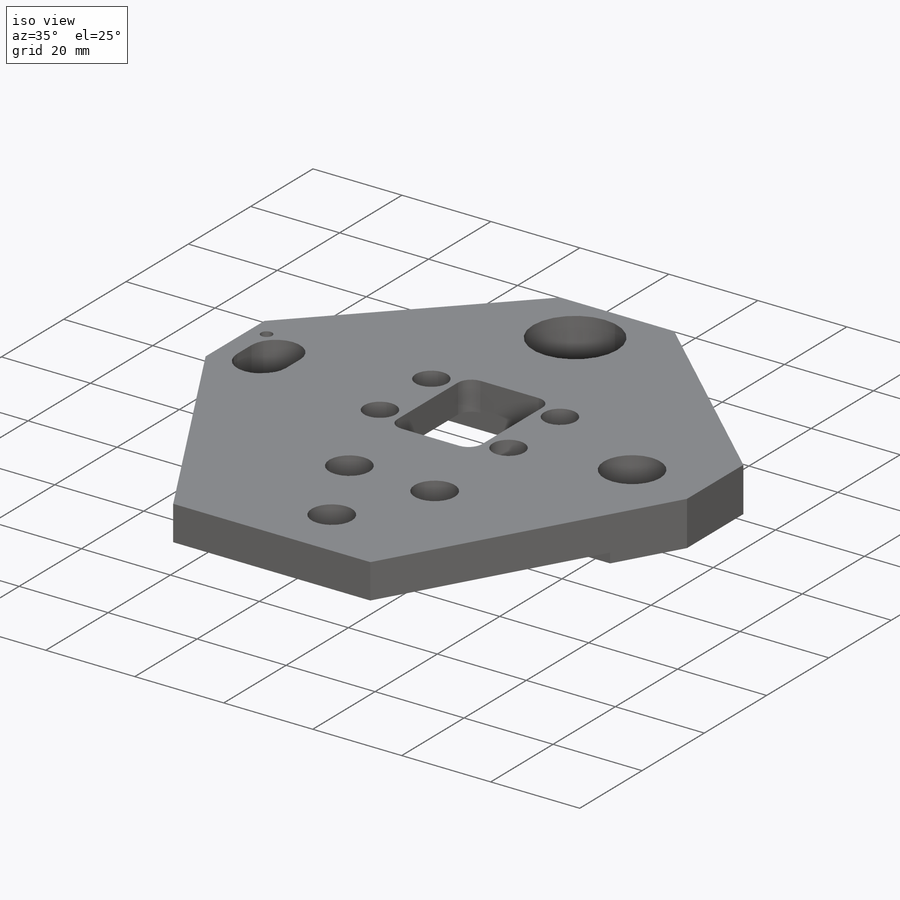
[diagram: iso view]
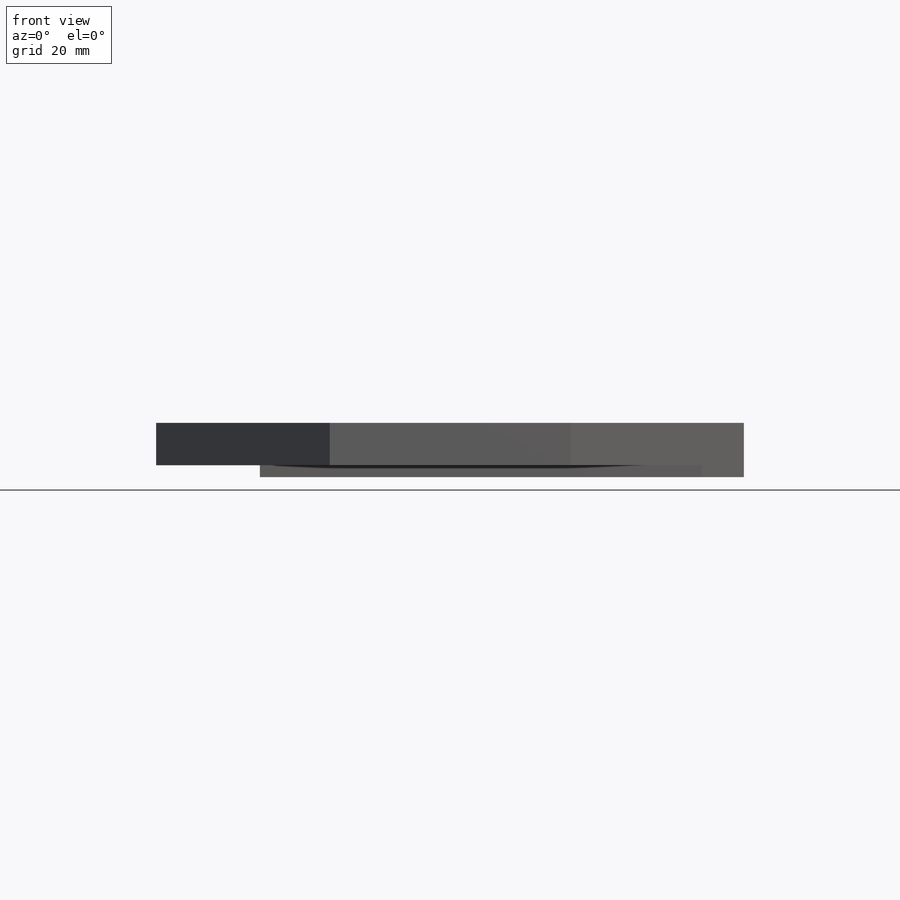
[diagram: front view]
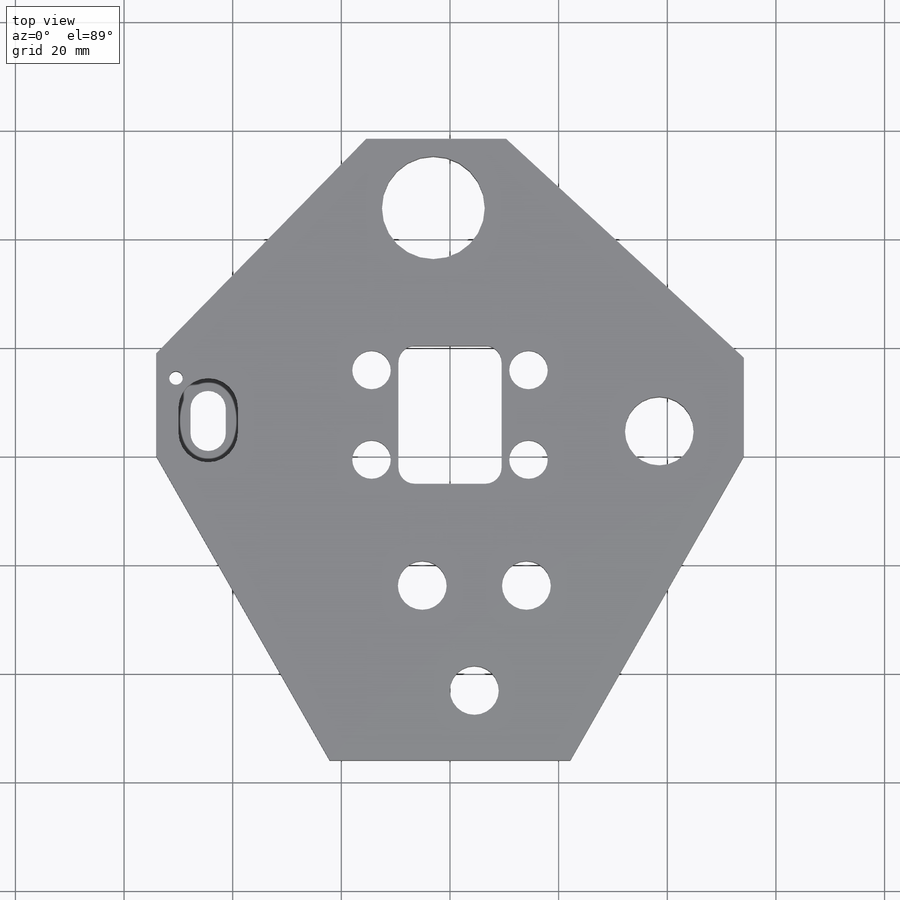
[diagram: top view]
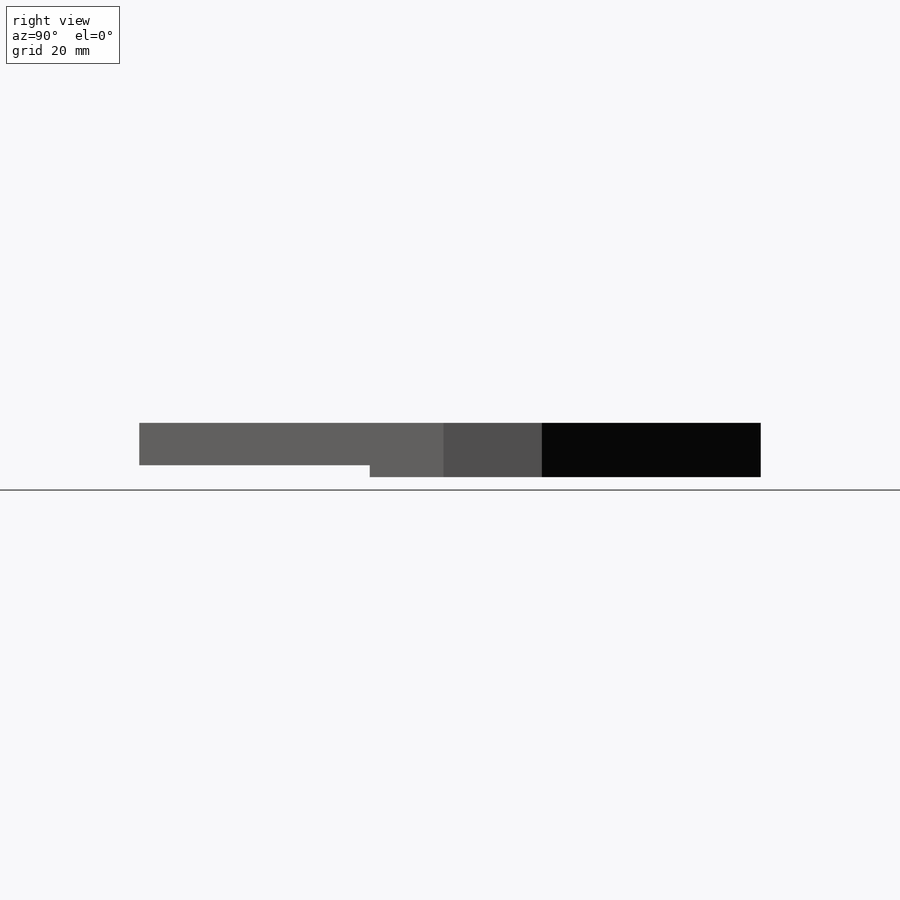
[diagram: right view]
SOLIDWORKS PART (.sldprt)
format: sldprt  version: not decoded by parser v0  size: 371,200 bytes
history: native  units: mm
features: sketch x7, cut_extrude x6, fillet x2, material x1, extrude x1 (+16 scaffold rows collapsed)
feature tree (33):
  scaffold x16  (default folders/planes/origin — collapsed)
  material  "1060 Alloy"
  sketch  "Sketch1"  dims[c1.D1=108.2mm c1.D2=114.5mm c1.D3=25.75mm c1.D4=45.9mm c1.D5=18.1mm c1.D6=59.5mm c1.D7=~61.904356mm c2.D4=64.5mm c2.D7=44.3mm c2.D8=55.3mm c2.D9=25.3mm c2.D10=19.0mm c2.D11=44.6mm c2.D12=38.2mm c2.D13=51.0mm c2.D2=48.85mm c3.D9=112.35mm c3.D13=25.3mm c3.D12=23.5mm c4.D13=40.0mm c4.D2=36.06mm c5.D13=52.79mm c5.D2=50.92mm c5.D12=25.42mm c6.D13=36.01mm c6.D9=38.1mm c7.D13=114.44mm]
  extrude  "Boss-Extrude2"  Depth=10mm
  fillet  "Fillet1"  Radius=3mm
  sketch  "Sketch3"  dims[D1=7.8mm D2=19.1mm]
  cut_extrude  "Cut-Extrude2"  [1 undecoded]
  sketch  "Sketch4"  dims[c1.D1=9.0mm c1.D5=12.66mm c1.D10=18.95mm c1.D18=3.75mm c1.D21=7.1mm c1.D22=2.5mm c1.D2=19.17mm c1.D3=21.58mm c1.D4=9.585mm c2.D4=~127.260622deg c3.D4=31.9mm c3.D6=28.7mm c3.D7=18.8mm c4.D4=38.04mm c4.D7=47.89mm c4.D8=52.91mm c4.D9=50.98mm c4.D11=15.95mm c4.D12=6.9mm c4.D13=51.16mm c4.D14=10.94mm c4.D15=59.5mm c4.D16=15.52mm c4.D17=47.77mm c4.D19=28.9mm c4.D20=16.5mm c4.D23=59.95mm c4.D24=7.8mm]
  cut_extrude  "Cut-Extrude3"  [1 undecoded]
  sketch  "Sketch5"  dims[D1=72.0mm]
  cut_extrude  "Cut-Extrude4"  [1 undecoded]
  sketch  "Sketch6"  dims[D1=39.39mm]
  cut_extrude  "Cut-Extrude5"  Depth=3.5mm
  fillet  "Fillet2"  Radius=2mm
  cut_extrude  "Cut-Extrude6"  [1 undecoded]
  sketch  "Sketch4<3>"  dims[D1=6.5mm]
  sketch  "Sketch7"  dims[D1=6.5mm]
  cut_extrude  "Cut-Extrude7"  [1 undecoded]
decode coverage: 11 of 16 modeling features carry decoded parameters
note: ~ marks probable driven/reference dimensions
note: 5 parameter values undecoded
summary: no parameter record found for 5 features
note: suppression state not decoded; provenance and decode notes live in map.json
